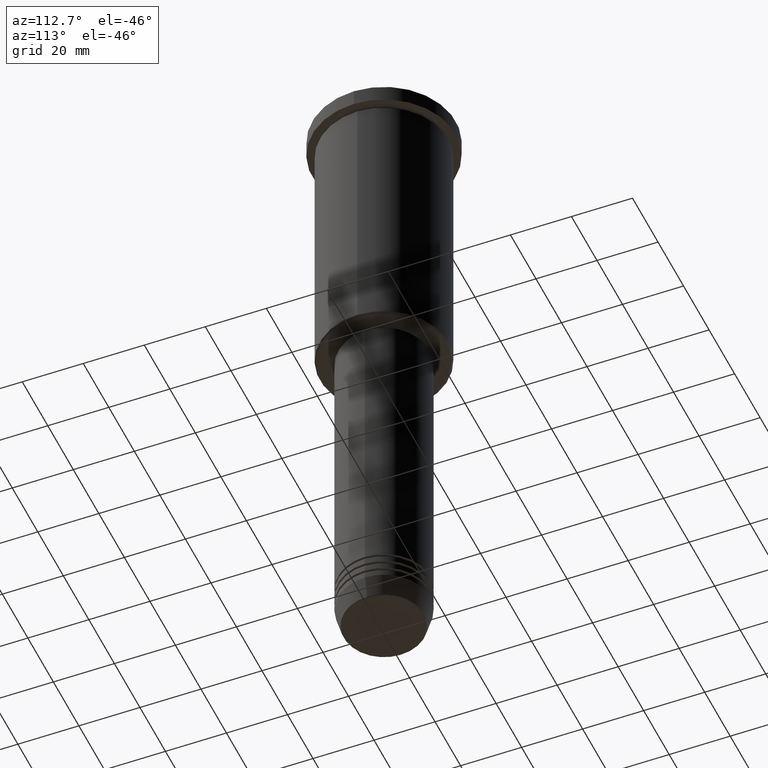
[diagram: clean part render]
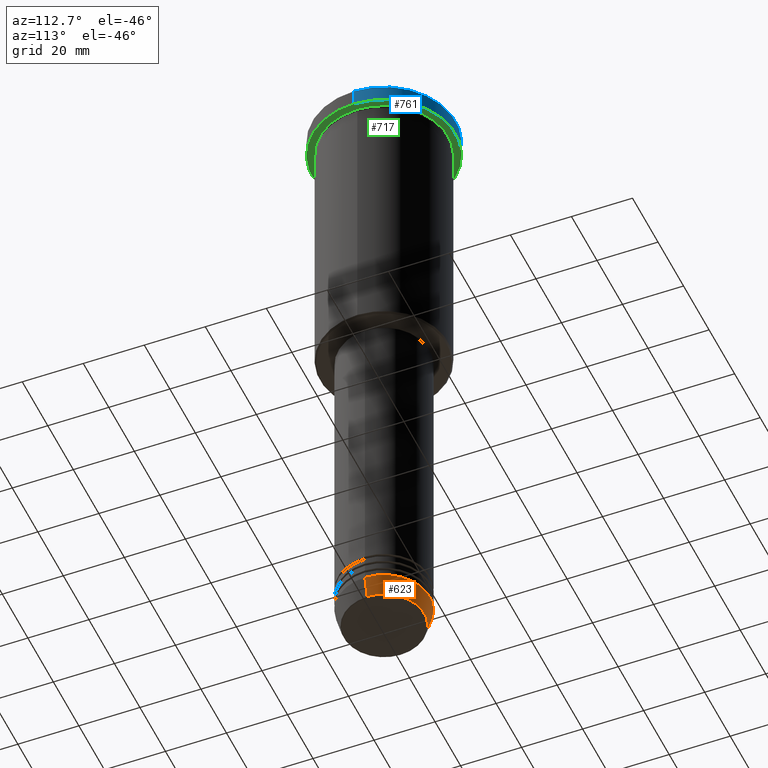
[diagram: same view with three faces highlighted in distinct colors, each labeled with its STEP entity id]
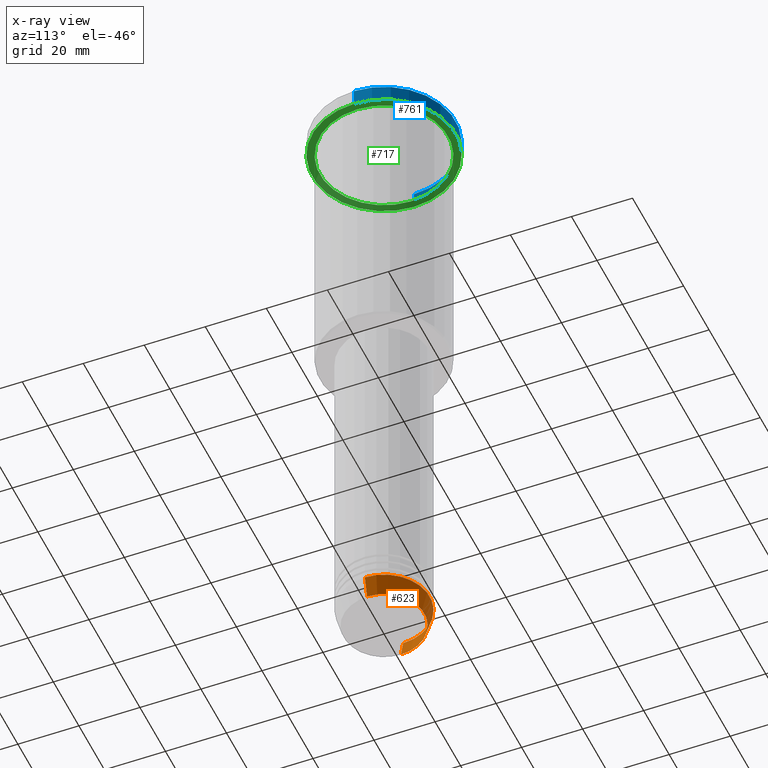
[diagram: x-ray of the same camera — body ghosted, the three highlighted faces saturated]
A machine part, auxiliary view with three faces highlighted in distinct colors.
The next image is the same camera in x-ray (body ghosted, the three faces saturated) — at least one of them is partly hidden behind the body in this view.
Their STEP definitions:

[orange] entity #623 — the highlighted conical surface has half-angle 15 deg.
#13 = ORIENTED_EDGE ( 'NONE', *, *, #209, .T. ) ;
#15 = AXIS2_PLACEMENT_3D ( 'NONE', #341, #701, #706 ) ;
#23 = EDGE_CURVE ( 'NONE', #1128, #1174, #436, .T. ) ;
#36 = AXIS2_PLACEMENT_3D ( 'NONE', #571, #94, #445 ) ;
#71 = VERTEX_POINT ( 'NONE', #646 ) ;
#91 = CARTESIAN_POINT ( 'NONE',  ( 15.00000000000000000, 0.000000000000000000, -204.0000000000000284 ) ) ;
#94 = DIRECTION ( 'NONE',  ( -0.000000000000000000, -0.000000000000000000, 1.000000000000000000 ) ) ;
#110 = CARTESIAN_POINT ( 'NONE',  ( 0.000000000000000000, 0.000000000000000000, -204.0000000000000284 ) ) ;
#194 = VECTOR ( 'NONE', #639, 1000.000000000000000 ) ;
#209 = EDGE_CURVE ( 'NONE', #71, #1174, #1127, .T. ) ;
#270 = CARTESIAN_POINT ( 'NONE',  ( 13.22365507213720015, 0.000000000000000000, -210.6294095225512706 ) ) ;
#320 = EDGE_LOOP ( 'NONE', ( #614, #13, #689, #878 ) ) ;
#341 = CARTESIAN_POINT ( 'NONE',  ( 0.000000000000000000, 0.000000000000000000, -204.0000000000000284 ) ) ;
#406 = DIRECTION ( 'NONE',  ( -0.2588190451025209060, 3.169619151431766790E-17, 0.9659258262890682012 ) ) ;
#409 = CARTESIAN_POINT ( 'NONE',  ( -15.00000000000000000, 1.836970198721029589E-15, -204.0000000000000284 ) ) ;
#436 = CIRCLE ( 'NONE', #15, 15.00000000000000000 ) ;
#445 = DIRECTION ( 'NONE',  ( 1.000000000000000000, 0.000000000000000000, 0.000000000000000000 ) ) ;
#472 = LINE ( 'NONE', #91, #194 ) ;
#499 = CARTESIAN_POINT ( 'NONE',  ( -15.00000000000000000, 1.836970198721029589E-15, -204.0000000000000284 ) ) ;
#571 = CARTESIAN_POINT ( 'NONE',  ( 0.000000000000000000, 0.000000000000000000, -210.6294095225512706 ) ) ;
#614 = ORIENTED_EDGE ( 'NONE', *, *, #934, .T. ) ;
#623 = ADVANCED_FACE ( 'NONE', ( #1006 ), #1100, .T. ) ;
#639 = DIRECTION ( 'NONE',  ( 0.2588190451025209060, 0.000000000000000000, 0.9659258262890682012 ) ) ;
#646 = CARTESIAN_POINT ( 'NONE',  ( -13.22365507213720015, 1.728200442216589175E-15, -210.6294095225512706 ) ) ;
#689 = ORIENTED_EDGE ( 'NONE', *, *, #23, .F. ) ;
#701 = DIRECTION ( 'NONE',  ( -0.000000000000000000, -0.000000000000000000, 1.000000000000000000 ) ) ;
#706 = DIRECTION ( 'NONE',  ( 1.000000000000000000, 0.000000000000000000, 0.000000000000000000 ) ) ;
#750 = EDGE_CURVE ( 'NONE', #1032, #1128, #472, .T. ) ;
#756 = DIRECTION ( 'NONE',  ( -0.000000000000000000, -0.000000000000000000, 1.000000000000000000 ) ) ;
#878 = ORIENTED_EDGE ( 'NONE', *, *, #750, .F. ) ;
#934 = EDGE_CURVE ( 'NONE', #1032, #71, #959, .T. ) ;
#959 = CIRCLE ( 'NONE', #36, 13.22365507213720015 ) ;
#1006 = FACE_OUTER_BOUND ( 'NONE', #320, .T. ) ;
#1022 = AXIS2_PLACEMENT_3D ( 'NONE', #110, #756, #1153 ) ;
#1032 = VERTEX_POINT ( 'NONE', #270 ) ;
#1045 = CARTESIAN_POINT ( 'NONE',  ( 15.00000000000000000, 0.000000000000000000, -204.0000000000000284 ) ) ;
#1100 = CONICAL_SURFACE ( 'NONE', #1022, 15.00000000000000000, 0.2617993877991495744 ) ;
#1106 = VECTOR ( 'NONE', #406, 1000.000000000000000 ) ;
#1127 = LINE ( 'NONE', #499, #1106 ) ;
#1128 = VERTEX_POINT ( 'NONE', #1045 ) ;
#1153 = DIRECTION ( 'NONE',  ( 1.000000000000000000, 0.000000000000000000, 0.000000000000000000 ) ) ;
#1174 = VERTEX_POINT ( 'NONE', #409 ) ;

[blue] entity #761 — the highlighted cylindrical surface (partial cylindrical patch) has radius 23.5 mm, axis along (-0, -0, 1).
#67 = DIRECTION ( 'NONE',  ( -0.000000000000000000, -0.000000000000000000, 1.000000000000000000 ) ) ;
#79 = CARTESIAN_POINT ( 'NONE',  ( 23.50000000000000000, 0.000000000000000000, -5.999999999999994671 ) ) ;
#121 = AXIS2_PLACEMENT_3D ( 'NONE', #931, #700, #1047 ) ;
#169 = LINE ( 'NONE', #250, #249 ) ;
#228 = EDGE_CURVE ( 'NONE', #1033, #716, #279, .T. ) ;
#249 = VECTOR ( 'NONE', #528, 1000.000000000000000 ) ;
#250 = CARTESIAN_POINT ( 'NONE',  ( -23.50000000000000000, 2.877919977996280320E-15, 0.000000000000000000 ) ) ;
#251 = ORIENTED_EDGE ( 'NONE', *, *, #1063, .F. ) ;
#279 = CIRCLE ( 'NONE', #508, 23.50000000000000000 ) ;
#402 = CARTESIAN_POINT ( 'NONE',  ( 0.000000000000000000, 0.000000000000000000, 0.000000000000000000 ) ) ;
#421 = ORIENTED_EDGE ( 'NONE', *, *, #228, .T. ) ;
#456 = DIRECTION ( 'NONE',  ( 1.000000000000000000, 0.000000000000000000, 0.000000000000000000 ) ) ;
#474 = EDGE_LOOP ( 'NONE', ( #737, #923, #421, #251 ) ) ;
#507 = DIRECTION ( 'NONE',  ( -0.000000000000000000, -0.000000000000000000, 1.000000000000000000 ) ) ;
#508 = AXIS2_PLACEMENT_3D ( 'NONE', #1136, #666, #456 ) ;
#509 = VERTEX_POINT ( 'NONE', #945 ) ;
#520 = DIRECTION ( 'NONE',  ( 1.000000000000000000, 0.000000000000000000, 0.000000000000000000 ) ) ;
#528 = DIRECTION ( 'NONE',  ( -0.000000000000000000, -0.000000000000000000, 1.000000000000000000 ) ) ;
#632 = CARTESIAN_POINT ( 'NONE',  ( -23.50000000000000000, 2.877919977996280320E-15, -0.5000000000000004441 ) ) ;
#640 = EDGE_CURVE ( 'NONE', #920, #509, #656, .T. ) ;
#656 = CIRCLE ( 'NONE', #121, 23.50000000000000000 ) ;
#666 = DIRECTION ( 'NONE',  ( 0.000000000000000000, 0.000000000000000000, -1.000000000000000000 ) ) ;
#700 = DIRECTION ( 'NONE',  ( -0.000000000000000000, -0.000000000000000000, 1.000000000000000000 ) ) ;
#716 = VERTEX_POINT ( 'NONE', #1118 ) ;
#737 = ORIENTED_EDGE ( 'NONE', *, *, #640, .T. ) ;
#761 = ADVANCED_FACE ( 'NONE', ( #928 ), #1158, .T. ) ;
#768 = AXIS2_PLACEMENT_3D ( 'NONE', #402, #67, #520 ) ;
#786 = LINE ( 'NONE', #865, #853 ) ;
#828 = EDGE_CURVE ( 'NONE', #509, #1033, #169, .T. ) ;
#853 = VECTOR ( 'NONE', #507, 1000.000000000000000 ) ;
#865 = CARTESIAN_POINT ( 'NONE',  ( 23.50000000000000000, 0.000000000000000000, 0.000000000000000000 ) ) ;
#920 = VERTEX_POINT ( 'NONE', #79 ) ;
#923 = ORIENTED_EDGE ( 'NONE', *, *, #828, .T. ) ;
#928 = FACE_OUTER_BOUND ( 'NONE', #474, .T. ) ;
#931 = CARTESIAN_POINT ( 'NONE',  ( 0.000000000000000000, 0.000000000000000000, -5.999999999999994671 ) ) ;
#945 = CARTESIAN_POINT ( 'NONE',  ( -23.50000000000000000, 2.877919977996280320E-15, -5.999999999999994671 ) ) ;
#1033 = VERTEX_POINT ( 'NONE', #632 ) ;
#1047 = DIRECTION ( 'NONE',  ( 1.000000000000000000, 0.000000000000000000, 0.000000000000000000 ) ) ;
#1063 = EDGE_CURVE ( 'NONE', #920, #716, #786, .T. ) ;
#1118 = CARTESIAN_POINT ( 'NONE',  ( 23.50000000000000000, 0.000000000000000000, -0.5000000000000004441 ) ) ;
#1136 = CARTESIAN_POINT ( 'NONE',  ( 0.000000000000000000, 0.000000000000000000, -0.5000000000000004441 ) ) ;
#1158 = CYLINDRICAL_SURFACE ( 'NONE', #768, 23.50000000000000000 ) ;

[green] entity #717 — the highlighted planar face has unit normal (0, 0, -1).
#16 = DIRECTION ( 'NONE',  ( -1.000000000000000000, 0.000000000000000000, -0.000000000000000000 ) ) ;
#74 = AXIS2_PLACEMENT_3D ( 'NONE', #155, #809, #237 ) ;
#75 = VERTEX_POINT ( 'NONE', #111 ) ;
#79 = CARTESIAN_POINT ( 'NONE',  ( 23.50000000000000000, 0.000000000000000000, -5.999999999999994671 ) ) ;
#111 = CARTESIAN_POINT ( 'NONE',  ( 21.00000000000000000, 2.571758278209441661E-15, -5.999999999999994671 ) ) ;
#118 = ORIENTED_EDGE ( 'NONE', *, *, #640, .F. ) ;
#121 = AXIS2_PLACEMENT_3D ( 'NONE', #931, #700, #1047 ) ;
#145 = CIRCLE ( 'NONE', #999, 21.00000000000000000 ) ;
#154 = AXIS2_PLACEMENT_3D ( 'NONE', #326, #244, #957 ) ;
#155 = CARTESIAN_POINT ( 'NONE',  ( 0.000000000000000000, 0.000000000000000000, -5.999999999999994671 ) ) ;
#162 = EDGE_LOOP ( 'NONE', ( #848, #1163 ) ) ;
#164 = VERTEX_POINT ( 'NONE', #990 ) ;
#199 = CARTESIAN_POINT ( 'NONE',  ( 0.000000000000000000, 23.50000000000000000, -5.999999999999994671 ) ) ;
#210 = CIRCLE ( 'NONE', #74, 23.50000000000000000 ) ;
#237 = DIRECTION ( 'NONE',  ( 1.000000000000000000, 0.000000000000000000, 0.000000000000000000 ) ) ;
#244 = DIRECTION ( 'NONE',  ( -0.000000000000000000, -0.000000000000000000, 1.000000000000000000 ) ) ;
#287 = CIRCLE ( 'NONE', #154, 21.00000000000000000 ) ;
#326 = CARTESIAN_POINT ( 'NONE',  ( 0.000000000000000000, 0.000000000000000000, -5.999999999999994671 ) ) ;
#373 = FACE_BOUND ( 'NONE', #162, .T. ) ;
#375 = CARTESIAN_POINT ( 'NONE',  ( 0.000000000000000000, 0.000000000000000000, -5.999999999999994671 ) ) ;
#399 = AXIS2_PLACEMENT_3D ( 'NONE', #199, #755, #16 ) ;
#400 = EDGE_CURVE ( 'NONE', #164, #75, #145, .T. ) ;
#439 = ORIENTED_EDGE ( 'NONE', *, *, #855, .F. ) ;
#473 = FACE_OUTER_BOUND ( 'NONE', #884, .T. ) ;
#493 = PLANE ( 'NONE',  #399 ) ;
#509 = VERTEX_POINT ( 'NONE', #945 ) ;
#640 = EDGE_CURVE ( 'NONE', #920, #509, #656, .T. ) ;
#656 = CIRCLE ( 'NONE', #121, 23.50000000000000000 ) ;
#657 = DIRECTION ( 'NONE',  ( -1.000000000000000000, 0.000000000000000000, 0.000000000000000000 ) ) ;
#700 = DIRECTION ( 'NONE',  ( -0.000000000000000000, -0.000000000000000000, 1.000000000000000000 ) ) ;
#717 = ADVANCED_FACE ( 'NONE', ( #373, #473 ), #493, .T. ) ;
#755 = DIRECTION ( 'NONE',  ( 0.000000000000000000, 0.000000000000000000, -1.000000000000000000 ) ) ;
#809 = DIRECTION ( 'NONE',  ( -0.000000000000000000, -0.000000000000000000, 1.000000000000000000 ) ) ;
#848 = ORIENTED_EDGE ( 'NONE', *, *, #400, .T. ) ;
#855 = EDGE_CURVE ( 'NONE', #509, #920, #210, .T. ) ;
#884 = EDGE_LOOP ( 'NONE', ( #118, #439 ) ) ;
#899 = EDGE_CURVE ( 'NONE', #75, #164, #287, .T. ) ;
#920 = VERTEX_POINT ( 'NONE', #79 ) ;
#931 = CARTESIAN_POINT ( 'NONE',  ( 0.000000000000000000, 0.000000000000000000, -5.999999999999994671 ) ) ;
#945 = CARTESIAN_POINT ( 'NONE',  ( -23.50000000000000000, 2.877919977996280320E-15, -5.999999999999994671 ) ) ;
#957 = DIRECTION ( 'NONE',  ( -1.000000000000000000, 0.000000000000000000, 0.000000000000000000 ) ) ;
#990 = CARTESIAN_POINT ( 'NONE',  ( -21.00000000000000000, 0.000000000000000000, -5.999999999999994671 ) ) ;
#999 = AXIS2_PLACEMENT_3D ( 'NONE', #375, #1097, #657 ) ;
#1047 = DIRECTION ( 'NONE',  ( 1.000000000000000000, 0.000000000000000000, 0.000000000000000000 ) ) ;
#1097 = DIRECTION ( 'NONE',  ( -0.000000000000000000, -0.000000000000000000, 1.000000000000000000 ) ) ;
#1163 = ORIENTED_EDGE ( 'NONE', *, *, #899, .T. ) ;